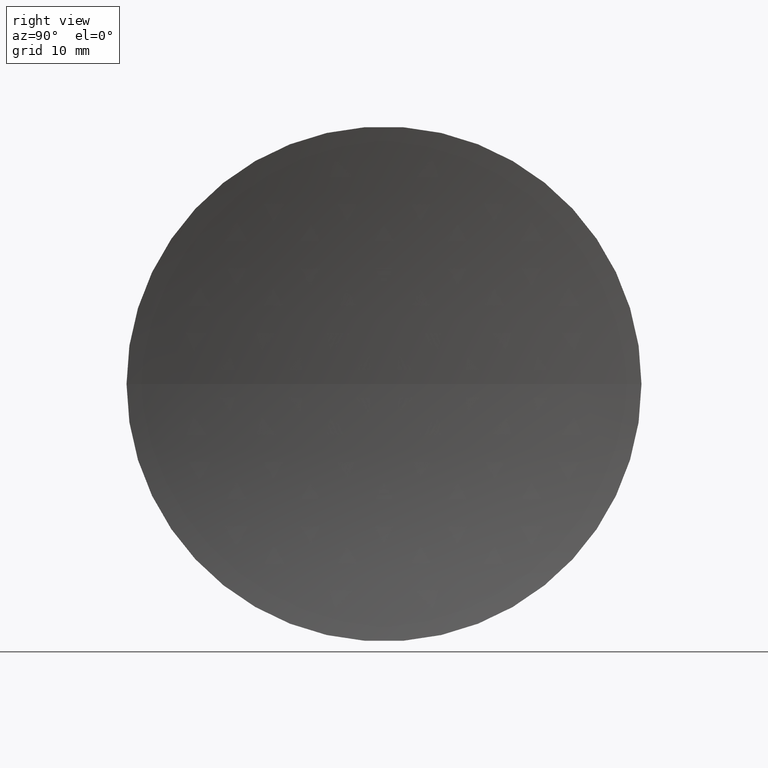
[diagram: clean part render]
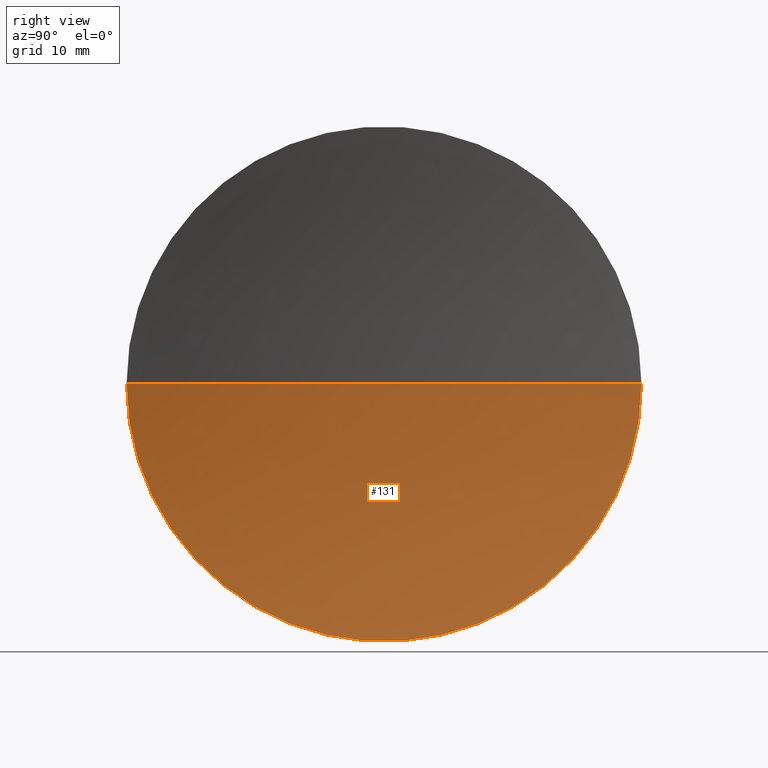
[diagram: same view with one face highlighted and labeled with its STEP entity id]
A machine part, right view. The second image highlights one B-rep face of the part: STEP entity #131.
In plain terms, the highlighted spherical surface has radius 122.8 mm.
Its self-contained STEP definition (entity closure, byte-faithful):
#1 = EDGE_CURVE ( 'NONE', #53, #113, #2, .T. ) ;
#2 = CIRCLE ( 'NONE', #134, 122.8000000000000000 ) ;
#9 = CARTESIAN_POINT ( 'NONE',  ( 252.7707128095205700, 130.4336809418806800, 0.0000000000000000000 ) ) ;
#12 = DIRECTION ( 'NONE',  ( 1.000000000000000000, 0.0000000000000000000, 0.0000000000000000000 ) ) ;
#15 = CARTESIAN_POINT ( 'NONE',  ( 250.1989956717489700, 130.4336809418805100, 0.0000000000000000000 ) ) ;
#17 = AXIS2_PLACEMENT_3D ( 'NONE', #158, #71, #176 ) ;
#20 = CIRCLE ( 'NONE', #192, 24.99999999999989700 ) ;
#21 = CARTESIAN_POINT ( 'NONE',  ( 372.9989956717490100, 130.4336809418806000, 0.0000000000000000000 ) ) ;
#23 = CARTESIAN_POINT ( 'NONE',  ( 252.7707128095205700, 105.4336809418806800, -3.061616997868363700E-015 ) ) ;
#24 = EDGE_CURVE ( 'NONE', #48, #53, #20, .T. ) ;
#36 = EDGE_CURVE ( 'NONE', #48, #113, #168, .T. ) ;
#44 = DIRECTION ( 'NONE',  ( -8.496118506040342700E-032, 1.224646799147353200E-016, -1.000000000000000000 ) ) ;
#48 = VERTEX_POINT ( 'NONE', #83 ) ;
#53 = VERTEX_POINT ( 'NONE', #23 ) ;
#57 = DIRECTION ( 'NONE',  ( 0.0000000000000000000, 1.000000000000000000, 1.224646799147353500E-016 ) ) ;
#60 = AXIS2_PLACEMENT_3D ( 'NONE', #97, #174, #12 ) ;
#67 = ORIENTED_EDGE ( 'NONE', *, *, #36, .T. ) ;
#71 = DIRECTION ( 'NONE',  ( 0.0000000000000000000, 0.0000000000000000000, -1.000000000000000000 ) ) ;
#83 = CARTESIAN_POINT ( 'NONE',  ( 252.7707128095205700, 155.4336809418805400, 0.0000000000000000000 ) ) ;
#91 = ORIENTED_EDGE ( 'NONE', *, *, #1, .F. ) ;
#97 = CARTESIAN_POINT ( 'NONE',  ( 372.9989956717490100, 130.4336809418806000, 0.0000000000000000000 ) ) ;
#113 = VERTEX_POINT ( 'NONE', #15 ) ;
#131 = ADVANCED_FACE ( 'NONE', ( #162 ), #179, .F. ) ;
#134 = AXIS2_PLACEMENT_3D ( 'NONE', #21, #44, #57 ) ;
#146 = ORIENTED_EDGE ( 'NONE', *, *, #24, .F. ) ;
#156 = DIRECTION ( 'NONE',  ( 0.0000000000000000000, -1.000000000000000000, 0.0000000000000000000 ) ) ;
#158 = CARTESIAN_POINT ( 'NONE',  ( 372.9989956717490100, 130.4336809418806000, 0.0000000000000000000 ) ) ;
#162 = FACE_OUTER_BOUND ( 'NONE', #166, .T. ) ;
#166 = EDGE_LOOP ( 'NONE', ( #91, #146, #67 ) ) ;
#168 = CIRCLE ( 'NONE', #60, 122.8000000000000300 ) ;
#171 = DIRECTION ( 'NONE',  ( -1.000000000000000000, -6.937607244762875000E-016, -0.0000000000000000000 ) ) ;
#174 = DIRECTION ( 'NONE',  ( 0.0000000000000000000, -0.0000000000000000000, 1.000000000000000000 ) ) ;
#176 = DIRECTION ( 'NONE',  ( -9.040904109325379100E-016, 1.000000000000000000, 0.0000000000000000000 ) ) ;
#179 = SPHERICAL_SURFACE ( 'NONE', #17, 122.8000000000000300 ) ;
#192 = AXIS2_PLACEMENT_3D ( 'NONE', #9, #171, #156 ) ;